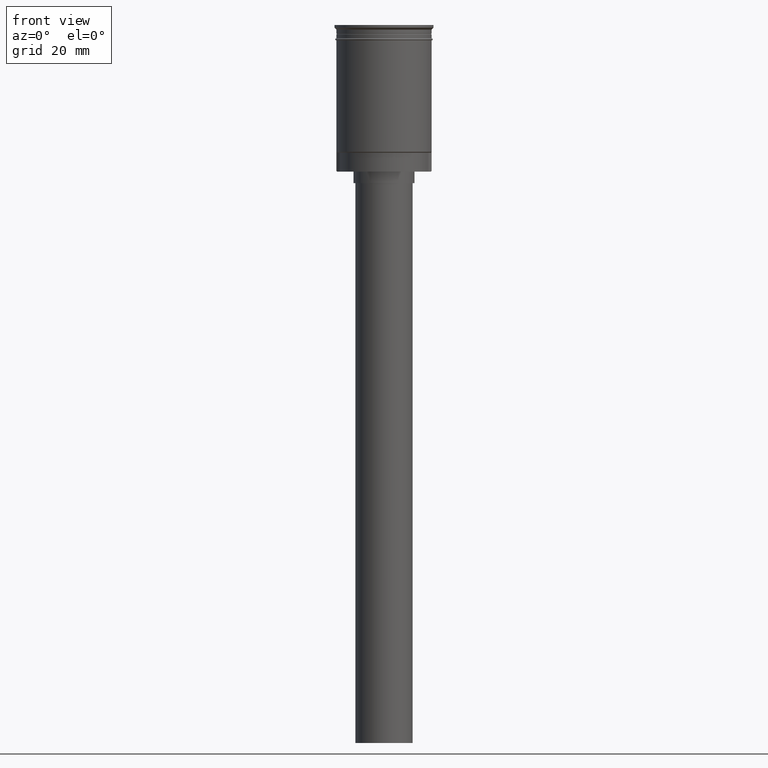
[diagram: clean part render]
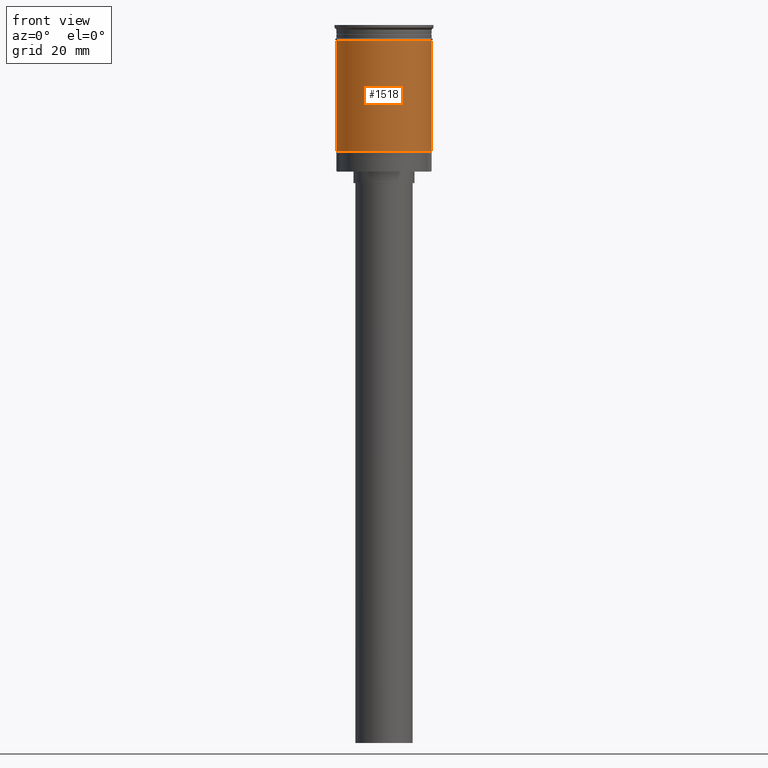
[diagram: same view with one face highlighted and labeled with its STEP entity id]
A machine part, front view. The second image highlights one B-rep face of the part: STEP entity #1518.
In plain terms, the highlighted cylindrical surface (partial cylindrical patch) has radius 12.5 mm, axis along (-0, -0, 1).
Its self-contained STEP definition (entity closure, byte-faithful):
#25 = LINE ( 'NONE', #745, #582 ) ;
#30 = FACE_OUTER_BOUND ( 'NONE', #617, .T. ) ;
#72 = VERTEX_POINT ( 'NONE', #1444 ) ;
#84 = CIRCLE ( 'NONE', #294, 12.49999999999999822 ) ;
#107 = ORIENTED_EDGE ( 'NONE', *, *, #974, .F. ) ;
#180 = DIRECTION ( 'NONE',  ( -0.000000000000000000, -0.000000000000000000, 1.000000000000000000 ) ) ;
#200 = VERTEX_POINT ( 'NONE', #1540 ) ;
#294 = AXIS2_PLACEMENT_3D ( 'NONE', #1325, #180, #694 ) ;
#305 = CYLINDRICAL_SURFACE ( 'NONE', #1431, 12.49999999999999645 ) ;
#423 = CARTESIAN_POINT ( 'NONE',  ( 0.000000000000000000, 0.000000000000000000, 0.000000000000000000 ) ) ;
#439 = VERTEX_POINT ( 'NONE', #620 ) ;
#489 = ORIENTED_EDGE ( 'NONE', *, *, #1386, .T. ) ;
#524 = DIRECTION ( 'NONE',  ( 1.000000000000000000, 0.000000000000000000, 0.000000000000000000 ) ) ;
#582 = VECTOR ( 'NONE', #1109, 1000.000000000000000 ) ;
#617 = EDGE_LOOP ( 'NONE', ( #998, #1361, #489, #107 ) ) ;
#620 = CARTESIAN_POINT ( 'NONE',  ( -12.50000000000000000, 1.530808498934191521E-15, -3.999999999999996447 ) ) ;
#676 = CARTESIAN_POINT ( 'NONE',  ( 12.49999999999999645, 1.530808498934191127E-15, -33.29999999999998295 ) ) ;
#694 = DIRECTION ( 'NONE',  ( 1.000000000000000000, 0.000000000000000000, 0.000000000000000000 ) ) ;
#745 = CARTESIAN_POINT ( 'NONE',  ( 12.49999999999999645, 0.000000000000000000, 0.000000000000000000 ) ) ;
#777 = DIRECTION ( 'NONE',  ( -0.000000000000000000, -0.000000000000000000, 1.000000000000000000 ) ) ;
#784 = VECTOR ( 'NONE', #1533, 1000.000000000000000 ) ;
#791 = CIRCLE ( 'NONE', #1327, 12.49999999999999645 ) ;
#857 = EDGE_CURVE ( 'NONE', #200, #1010, #791, .T. ) ;
#887 = CARTESIAN_POINT ( 'NONE',  ( 0.000000000000000000, 0.000000000000000000, -33.29999999999998295 ) ) ;
#906 = EDGE_CURVE ( 'NONE', #200, #439, #1420, .T. ) ;
#974 = EDGE_CURVE ( 'NONE', #439, #72, #84, .T. ) ;
#998 = ORIENTED_EDGE ( 'NONE', *, *, #906, .F. ) ;
#1010 = VERTEX_POINT ( 'NONE', #676 ) ;
#1109 = DIRECTION ( 'NONE',  ( -0.000000000000000000, -0.000000000000000000, 1.000000000000000000 ) ) ;
#1159 = DIRECTION ( 'NONE',  ( -1.000000000000000000, 0.000000000000000000, 0.000000000000000000 ) ) ;
#1182 = CARTESIAN_POINT ( 'NONE',  ( -12.49999999999999645, 1.530808498934191127E-15, 0.000000000000000000 ) ) ;
#1325 = CARTESIAN_POINT ( 'NONE',  ( 0.000000000000000000, 0.000000000000000000, -3.999999999999996447 ) ) ;
#1327 = AXIS2_PLACEMENT_3D ( 'NONE', #887, #777, #1159 ) ;
#1361 = ORIENTED_EDGE ( 'NONE', *, *, #857, .T. ) ;
#1386 = EDGE_CURVE ( 'NONE', #1010, #72, #25, .T. ) ;
#1411 = DIRECTION ( 'NONE',  ( -0.000000000000000000, -0.000000000000000000, 1.000000000000000000 ) ) ;
#1420 = LINE ( 'NONE', #1182, #784 ) ;
#1431 = AXIS2_PLACEMENT_3D ( 'NONE', #423, #1411, #524 ) ;
#1444 = CARTESIAN_POINT ( 'NONE',  ( 12.49999999999999822, 0.000000000000000000, -3.999999999999996447 ) ) ;
#1518 = ADVANCED_FACE ( 'NONE', ( #30 ), #305, .T. ) ;
#1533 = DIRECTION ( 'NONE',  ( -0.000000000000000000, -0.000000000000000000, 1.000000000000000000 ) ) ;
#1540 = CARTESIAN_POINT ( 'NONE',  ( -12.49999999999999289, 0.000000000000000000, -33.29999999999998295 ) ) ;